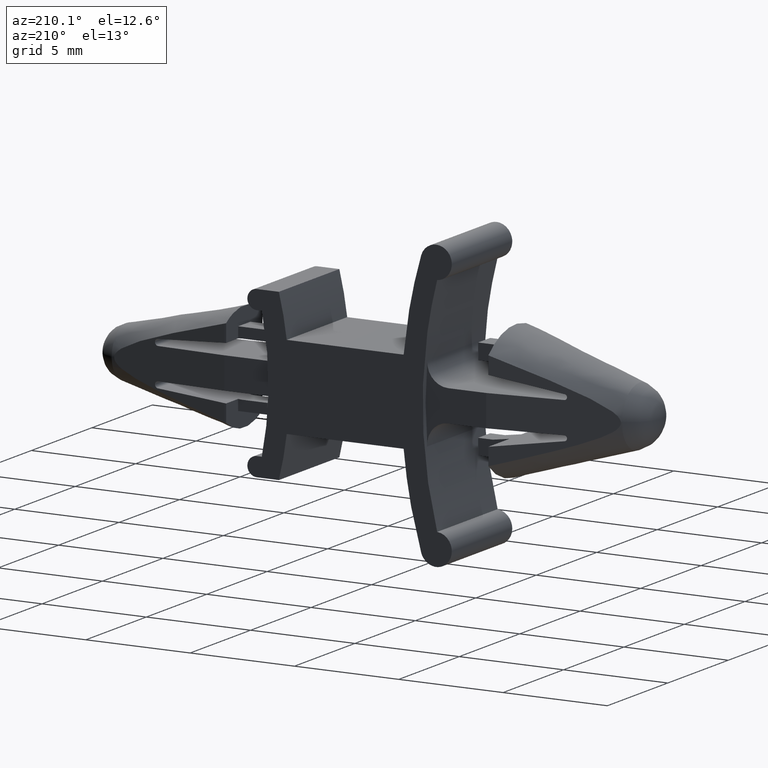
[diagram: clean part render]
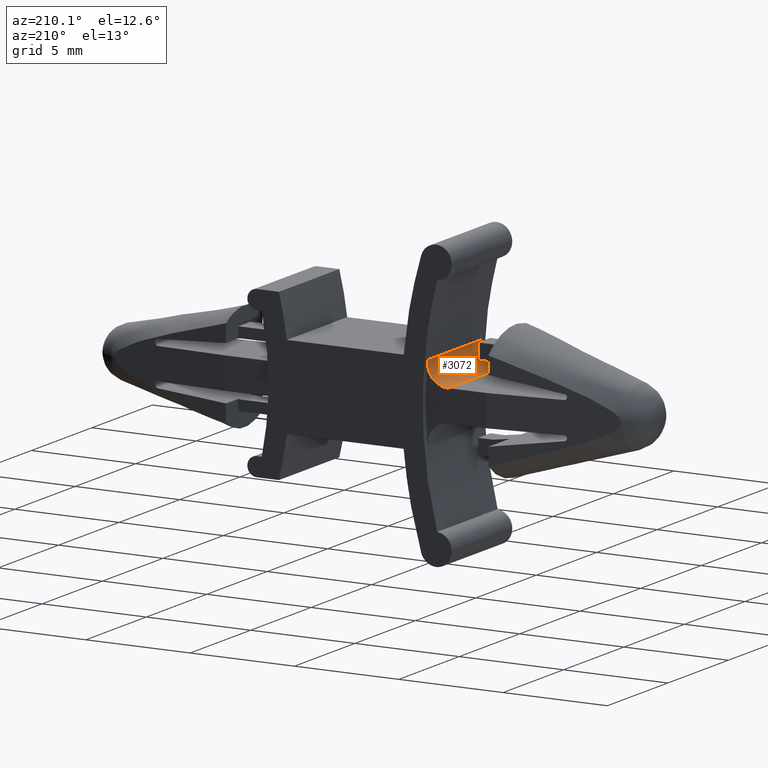
[diagram: same view with one face highlighted and labeled with its STEP entity id]
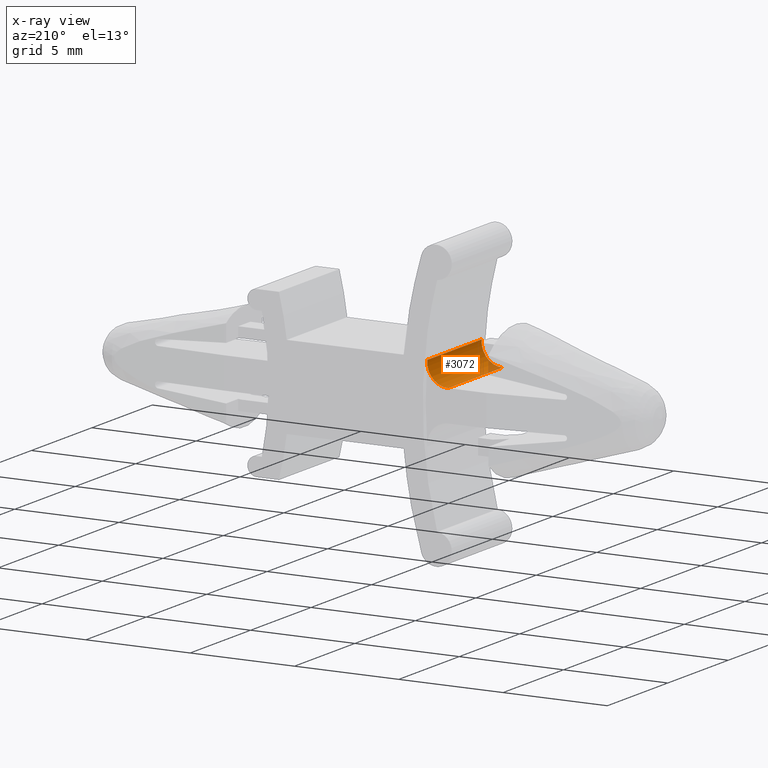
[diagram: x-ray of the same camera — body ghosted, the highlighted face saturated]
A machine part, auxiliary view. The second image highlights one B-rep face of the part: STEP entity #3072.
The next image is the same camera in x-ray: the body ghosted, the highlighted face saturated — about 4% of this face is hidden behind the body in this view.
In plain terms, the highlighted face is a freeform B-spline surface patch.
Its self-contained STEP definition (entity closure, byte-faithful):
#2801=CARTESIAN_POINT('',(-1.081089059355248,-2.249999999999975,1.838062619904070));
#2802=VERTEX_POINT('',#2801);
#2823=CARTESIAN_POINT('',(-1.081089059355248,2.250000000000085,1.838062619904070));
#2824=VERTEX_POINT('',#2823);
#2838=CARTESIAN_POINT('',(-1.081089059355248,2.250000000000085,1.838062619904070));
#2839=CARTESIAN_POINT('',(-1.081089059355248,-2.249999999999975,1.838062619904070));
#2840=QUASI_UNIFORM_CURVE('',1,(#2838,#2839),.UNSPECIFIED.,.F.,.U.);
#2841=EDGE_CURVE('',#2824,#2802,#2840,.T.);
#2951=CARTESIAN_POINT('',(-2.077203999999965,-2.249999999999975,0.750000000000000));
#2952=VERTEX_POINT('',#2951);
#2958=CARTESIAN_POINT('',(-2.077203999999965,2.250000000000085,0.750000000000000));
#2959=VERTEX_POINT('',#2958);
#2960=CARTESIAN_POINT('',(-2.077203999999965,2.250000000000085,0.750000000000000));
#2961=CARTESIAN_POINT('',(-2.077203999999965,-2.249999999999975,0.750000000000000));
#2962=QUASI_UNIFORM_CURVE('',1,(#2960,#2961),.UNSPECIFIED.,.F.,.U.);
#2963=EDGE_CURVE('',#2959,#2952,#2962,.T.);
#3024=CARTESIAN_POINT('',(-1.085759138626155,2.362500000000086,1.880526192220052));
#3025=CARTESIAN_POINT('',(-1.085759138626155,-2.365312499999977,1.880526192220052));
#3026=CARTESIAN_POINT('',(-0.925471165039348,2.362500000000086,0.663018157627683));
#3027=CARTESIAN_POINT('',(-0.925471165039348,-2.365312499999976,0.663018157627683));
#3028=CARTESIAN_POINT('',(-2.150208234103303,2.362500000000087,0.752668369195590));
#3029=CARTESIAN_POINT('',(-2.150208234103303,-2.365312499999976,0.752668369195590));
#3037=(BOUNDED_SURFACE()B_SPLINE_SURFACE(1,2,((#3024,#3026,#3028),(#3025,#3027,#3029)),.UNSPECIFIED.,.F.,.F.,.U.)B_SPLINE_SURFACE_WITH_KNOTS((2,2),(3,3),(0.0,4.727812500000064),(0.0,0.996484917463176),.UNSPECIFIED.)GEOMETRIC_REPRESENTATION_ITEM()RATIONAL_B_SPLINE_SURFACE(((1.0,0.630623360470015,0.997403221249755),(1.0,0.630623360470015,0.997403221249755)))REPRESENTATION_ITEM('')SURFACE());
#3038=CARTESIAN_POINT('',(-2.077203999999965,-2.249999999999975,0.750000000000000));
#3039=CARTESIAN_POINT('',(-1.636921783092707,-2.249999999999974,0.750000000000000));
#3040=CARTESIAN_POINT('',(-1.339619218464964,-2.249999999999975,1.074745462771286));
#3041=CARTESIAN_POINT('',(-1.042316653837221,-2.249999999999974,1.399490925542572));
#3042=CARTESIAN_POINT('',(-1.081089059355246,-2.249999999999975,1.838062619904070));
#3050=(BOUNDED_CURVE()B_SPLINE_CURVE(2,(#3038,#3039,#3040,#3041,#3042),.UNSPECIFIED.,.F.,.U.)B_SPLINE_CURVE_WITH_KNOTS((3,2,3),(0.0,0.500000000000000,1.0),.UNSPECIFIED.)CURVE()GEOMETRIC_REPRESENTATION_ITEM()RATIONAL_B_SPLINE_CURVE((1.0,0.915219792516725,1.0,0.915219792516725,1.0))REPRESENTATION_ITEM(''));
#3051=EDGE_CURVE('',#2952,#2802,#3050,.T.);
#3052=ORIENTED_EDGE('',*,*,#3051,.T.);
#3053=ORIENTED_EDGE('',*,*,#2841,.F.);
#3054=CARTESIAN_POINT('',(-2.077203999999965,2.250000000000085,0.750000000000000));
#3055=CARTESIAN_POINT('',(-1.636921783092707,2.250000000000085,0.750000000000000));
#3056=CARTESIAN_POINT('',(-1.339619218464964,2.250000000000085,1.074745462771286));
#3057=CARTESIAN_POINT('',(-1.042316653837221,2.250000000000085,1.399490925542572));
#3058=CARTESIAN_POINT('',(-1.081089059355246,2.250000000000085,1.838062619904070));
#3066=(BOUNDED_CURVE()B_SPLINE_CURVE(2,(#3054,#3055,#3056,#3057,#3058),.UNSPECIFIED.,.F.,.U.)B_SPLINE_CURVE_WITH_KNOTS((3,2,3),(0.0,0.500000000000000,1.0),.UNSPECIFIED.)CURVE()GEOMETRIC_REPRESENTATION_ITEM()RATIONAL_B_SPLINE_CURVE((1.0,0.915219792516725,1.0,0.915219792516725,1.0))REPRESENTATION_ITEM(''));
#3067=EDGE_CURVE('',#2959,#2824,#3066,.T.);
#3068=ORIENTED_EDGE('',*,*,#3067,.F.);
#3069=ORIENTED_EDGE('',*,*,#2963,.T.);
#3070=EDGE_LOOP('',(#3052,#3053,#3068,#3069));
#3071=FACE_OUTER_BOUND('',#3070,.T.);
#3072=ADVANCED_FACE('',(#3071),#3037,.F.);